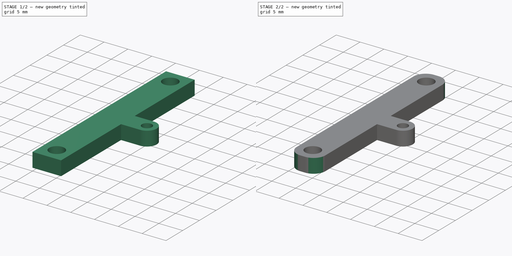
[diagram: build sequence overview — one tinted view per stage of 2, left to right]
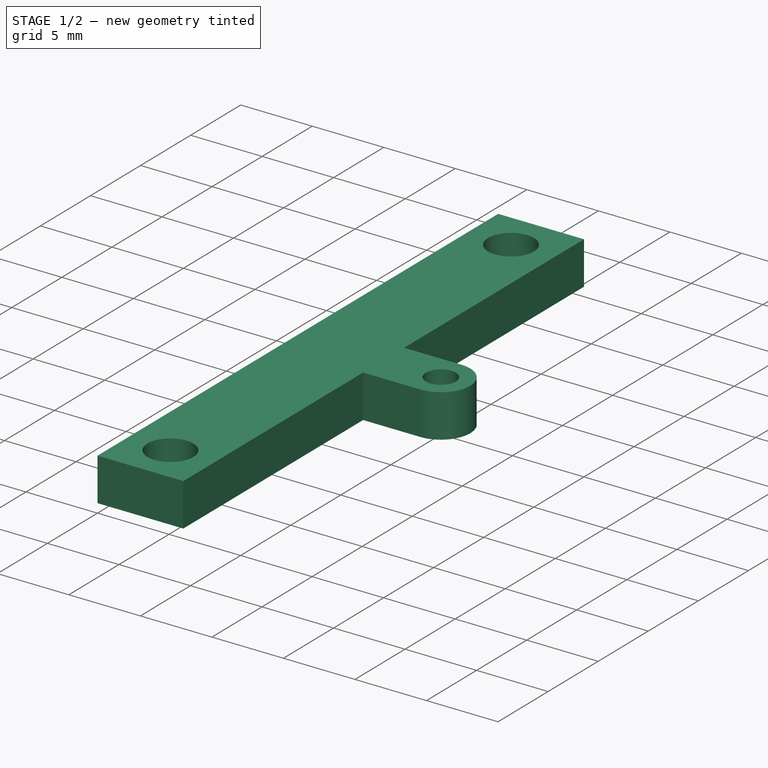
[diagram: stage 1 of 2 — iso view after this stage's code; geometry added in this stage tinted green]
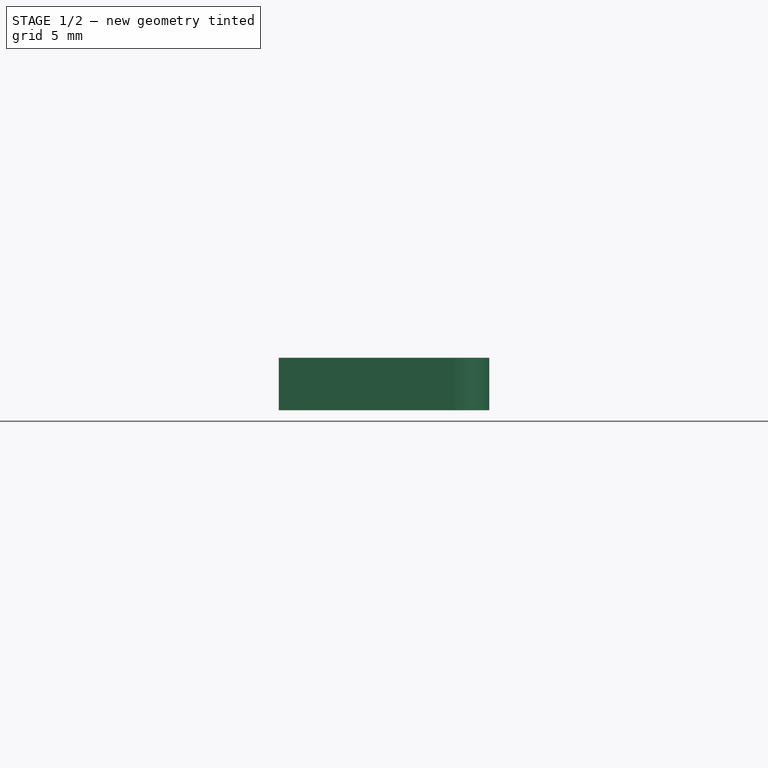
[diagram: stage 1 of 2 — front view after this stage's code; geometry added in this stage tinted green]
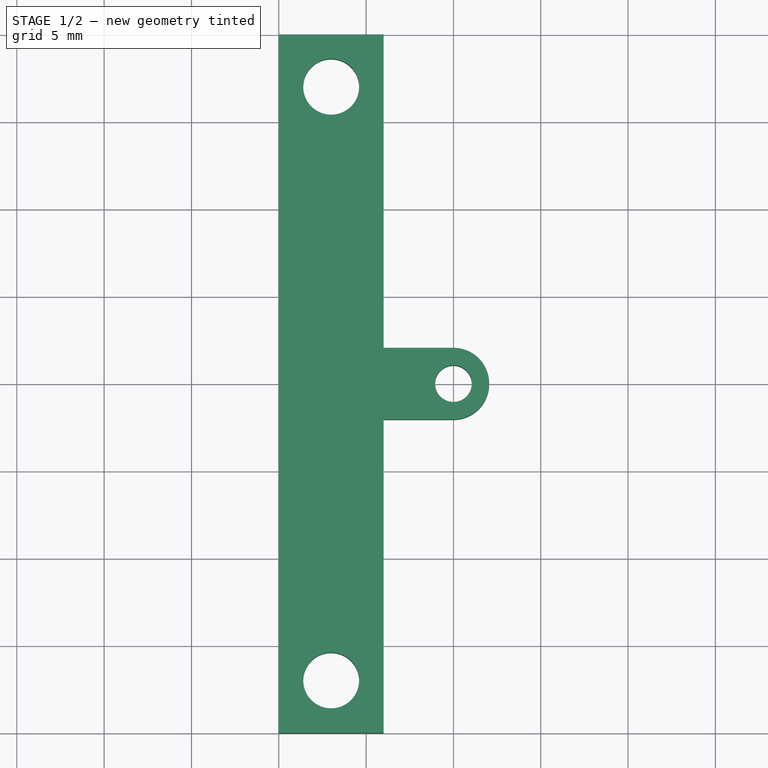
[diagram: stage 1 of 2 — top view after this stage's code; geometry added in this stage tinted green]
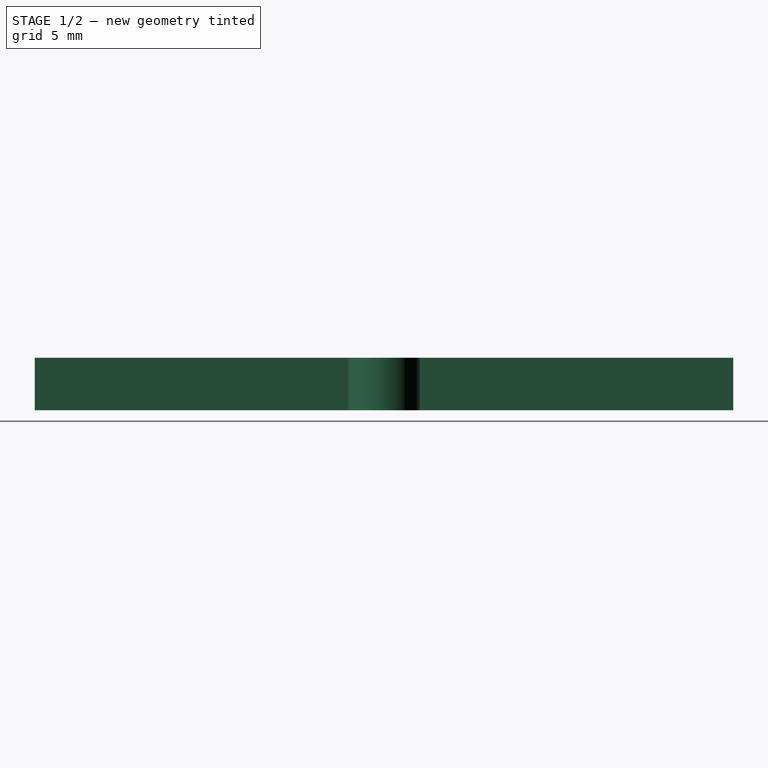
[diagram: stage 1 of 2 — right view after this stage's code; geometry added in this stage tinted green]
FCSTD DOCUMENT  (FreeCAD 0.16R6707 (Git))
Label: AnalogLineFollorSensors
License: All rights reserved
LicenseURL: http://en.wikipedia.org/wiki/All_rights_reserved
objects: Sketcher::SketchObject×1, PartDesign::Pad×1, PartDesign::Fillet×1
note: 4 computed .brp shape members not serialized (recipe doc carries the construction recipe); baked Part::Feature solids carry a one-line shape summary decoded from their .brp

FEATURE [Sketcher::SketchObject] Sketch
  sketch-geometry (15):
    g0: LineSegment [constr] StartX=-35 StartY=-20 StartZ=0 EndX=35 EndY=-20 EndZ=0
    g1: LineSegment [constr] StartX=35 StartY=-20 StartZ=0 EndX=35 EndY=20 EndZ=0
    g2: LineSegment [constr] StartX=35 StartY=20 StartZ=0 EndX=-35 EndY=20 EndZ=0
    g3: LineSegment [constr] StartX=-35 StartY=20 StartZ=0 EndX=-35 EndY=-20 EndZ=0
    g4: Circle CenterX=-32 CenterY=17 CenterZ=0 NormalX=0 NormalY=0 NormalZ=1 Radius=1.6
    g5: Circle CenterX=-32 CenterY=-17 CenterZ=0 NormalX=0 NormalY=0 NormalZ=1 Radius=1.6
    g6: LineSegment StartX=-35 StartY=20 StartZ=0 EndX=-29 EndY=20 EndZ=0
    g7: LineSegment StartX=-29 StartY=20 StartZ=0 EndX=-29 EndY=2.05 EndZ=0
    g8: LineSegment StartX=-29 StartY=2.05 StartZ=0 EndX=-25 EndY=2.05 EndZ=0
    g9: ArcOfCircle CenterX=-25 CenterY=0 CenterZ=0 NormalX=0 NormalY=0 NormalZ=1 Radius=2.05 StartAngle=4.7124 EndAngle=7.85398
    g10: LineSegment StartX=-25 StartY=-2.05 StartZ=0 EndX=-29 EndY=-2.05 EndZ=0
    g11: LineSegment StartX=-29 StartY=-2.05 StartZ=0 EndX=-29 EndY=-20 EndZ=0
    g12: LineSegment StartX=-29 StartY=-20 StartZ=0 EndX=-35 EndY=-20 EndZ=0
    g13: LineSegment StartX=-35 StartY=-20 StartZ=0 EndX=-35 EndY=20 EndZ=0
    g14: Circle CenterX=-25 CenterY=0 CenterZ=0 NormalX=0 NormalY=0 NormalZ=1 Radius=1.05
  constraints (40):
    c: Coincident(g0,g1)
    c: Coincident(g1,g2)
    c: Coincident(g2,g3)
    c: Coincident(g3,g0)
    c: Horizontal(g0)
    c: Horizontal(g2)
    c: Vertical(g1)
    c: Vertical(g3)
    c: Symmetric(g0,g1,g-1)
    c: Distance(g3) = 40
    c: Distance(g2) = 70
    c: Equal(g4,g5)
    c: Radius(g4) = 1.6
    c: Symmetric(g5,g4,g-1)
    c: DistanceY(g4,g2) = 3
    c: DistanceX(g2,g4) = 3
    c: Coincident(g2,g6)
    c: Horizontal(g6)
    c: Coincident(g6,g7)
    c: Vertical(g7)
    c: Coincident(g7,g8)
    c: Horizontal(g8)
    c: Tangent(g8,g9) = 1.5708
    c: Coincident(g9,g10)
    c: Horizontal(g10)
    c: Coincident(g10,g11)
    c: PointOnObject(g11,g0)
    c: Vertical(g11)
    c: Coincident(g11,g12)
    c: Coincident(g12,g0)
    c: Coincident(g12,g13)
    c: Coincident(g13,g2)
    c: Tangent(g10,g9)
    c: PointOnObject(g9,g-1)
    c: Coincident(g14,g9)
    c: Radius(g14) = 1.05
    c: Radius(g9) = 2.05
    c: DistanceX(g4,g6) = 3
    c: PointOnObject(g10,g7)
    c: DistanceX(g9,g-1) = 25
FEATURE [PartDesign::Pad] Pad
  Length = 3
  Length2 = 100
  Sketch = -> Sketch
  Type = 0
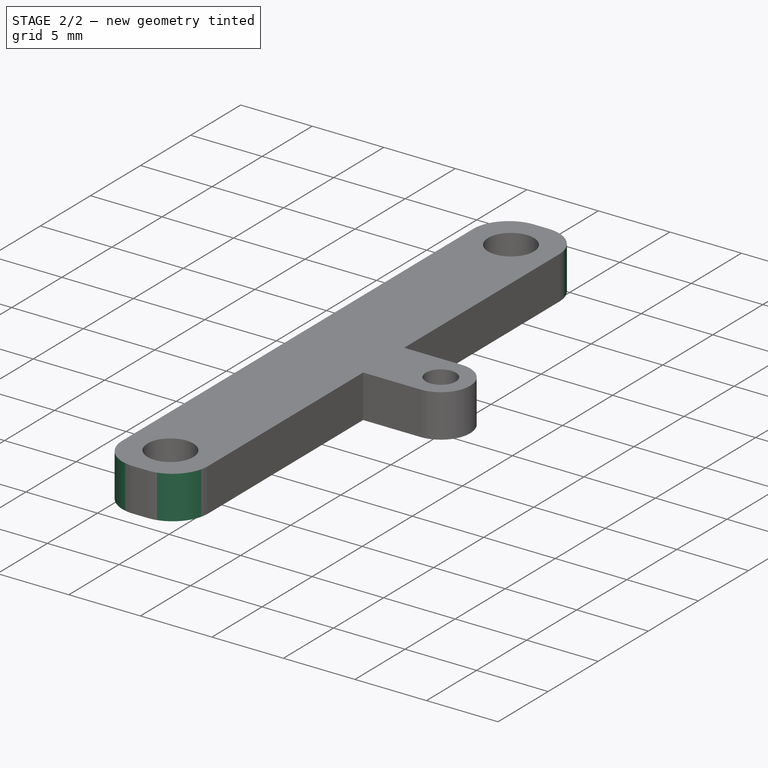
[diagram: stage 2 of 2 — iso view after this stage's code; geometry added in this stage tinted green]
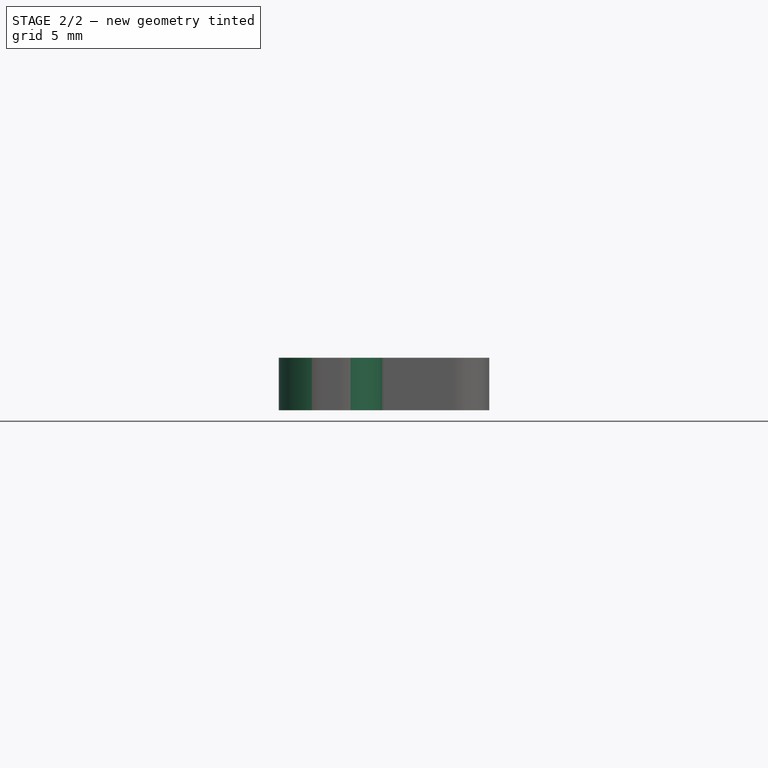
[diagram: stage 2 of 2 — front view after this stage's code; geometry added in this stage tinted green]
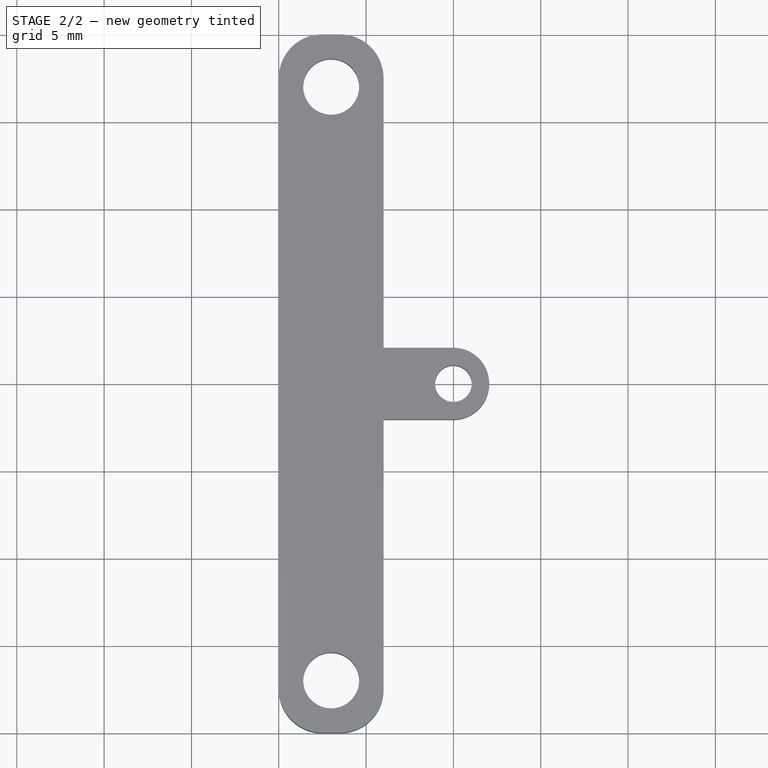
[diagram: stage 2 of 2 — top view after this stage's code; geometry added in this stage tinted green]
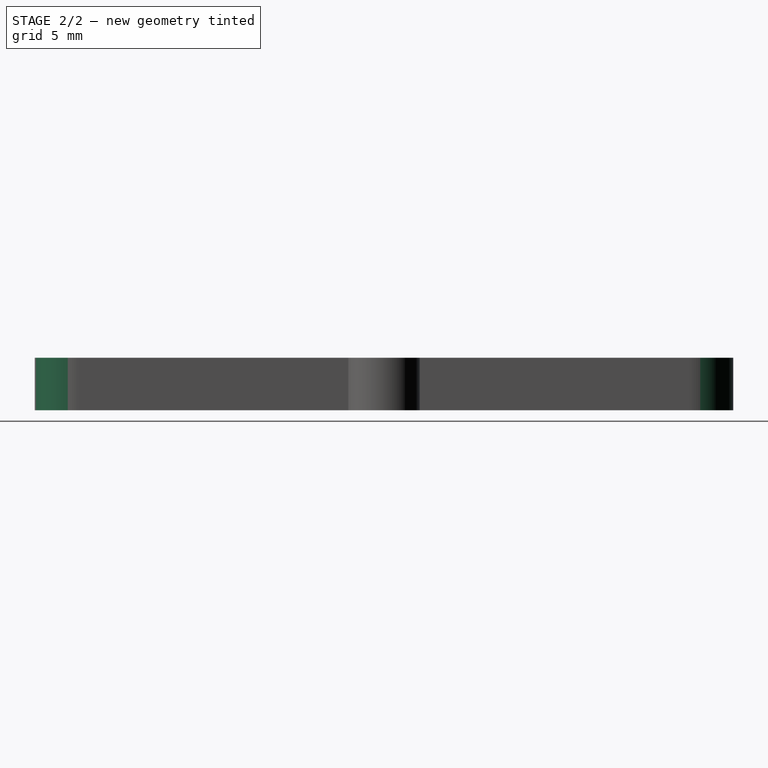
[diagram: stage 2 of 2 — right view after this stage's code; geometry added in this stage tinted green]
FEATURE [PartDesign::Fillet] Fillet
  Base = -> Pad [Edge17,Edge20,Edge2,Edge1]
  Radius = 2.5
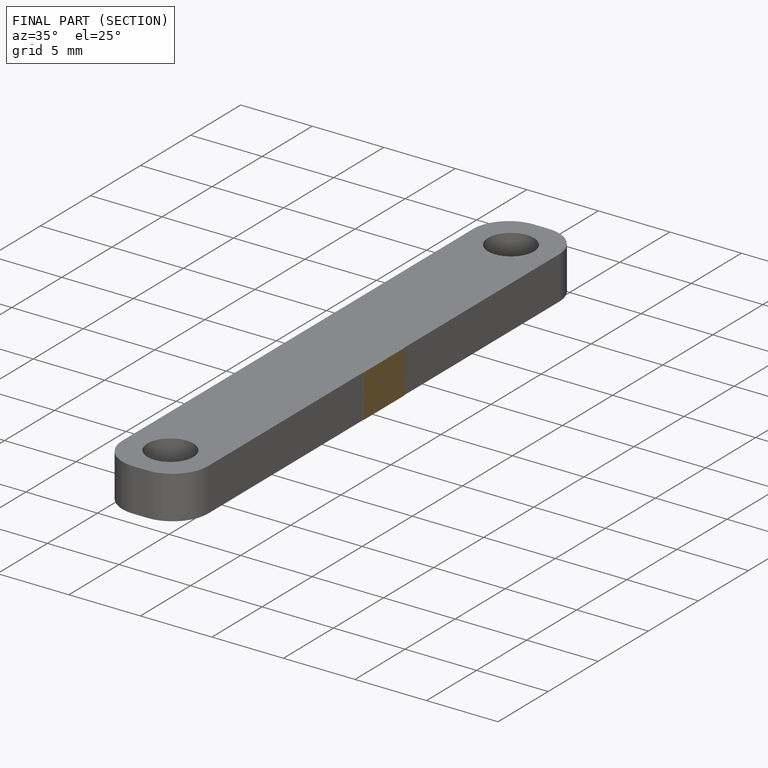
[diagram: finished part — half-section view (interior)]
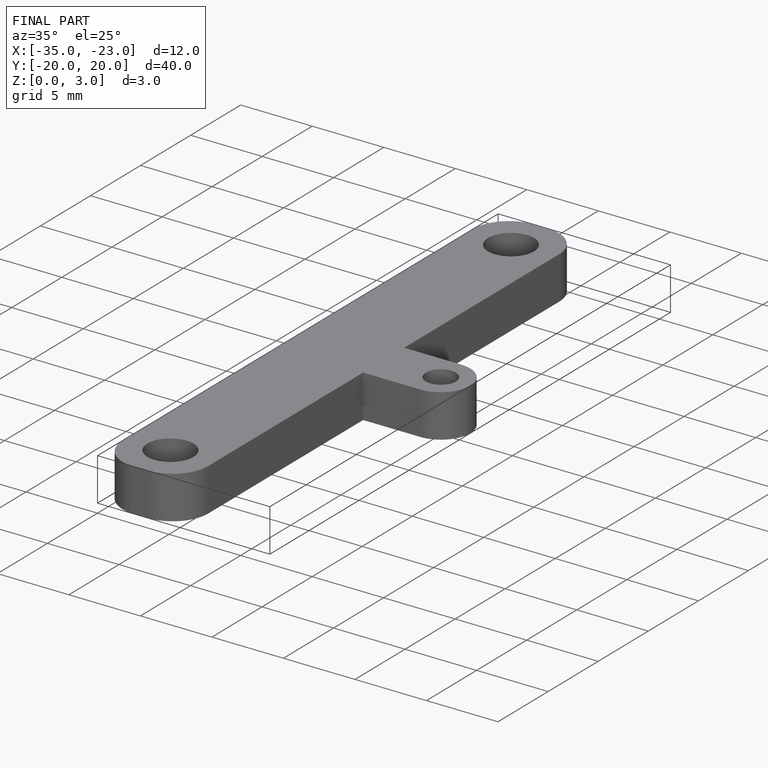
[diagram: finished part — iso view with bounding-box wireframe]
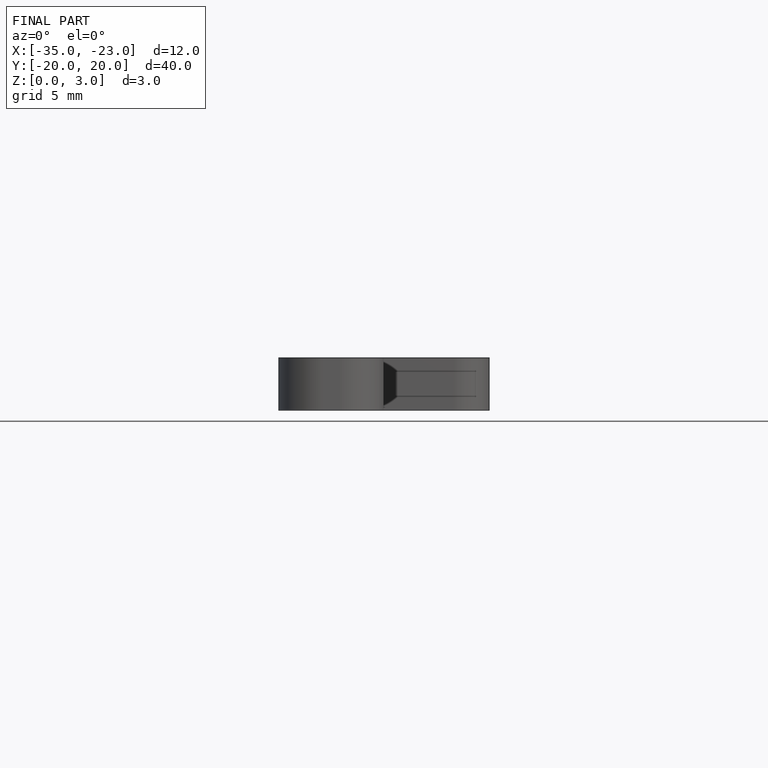
[diagram: finished part — front view with bounding-box wireframe]
